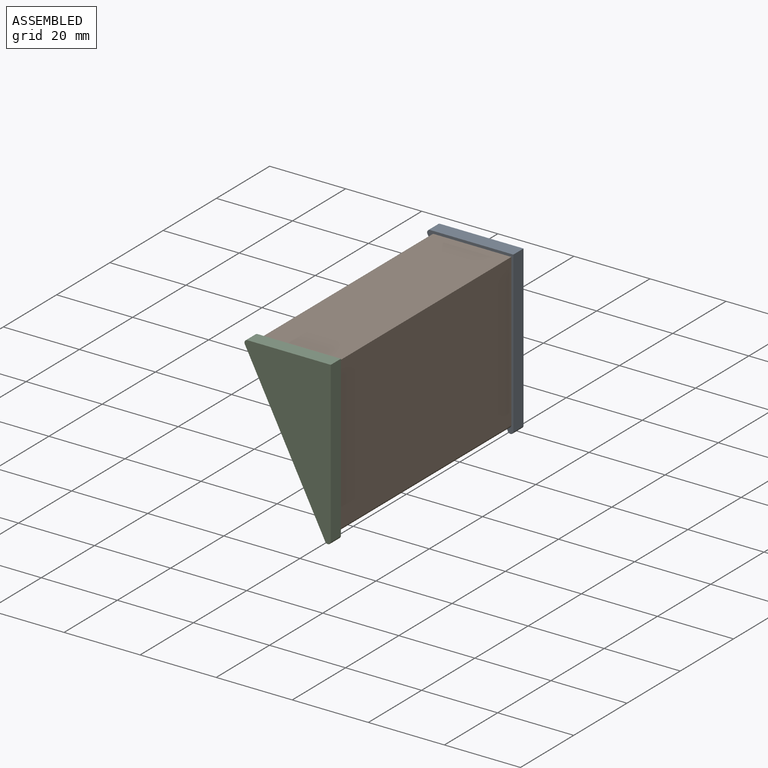
[diagram: assembled view]
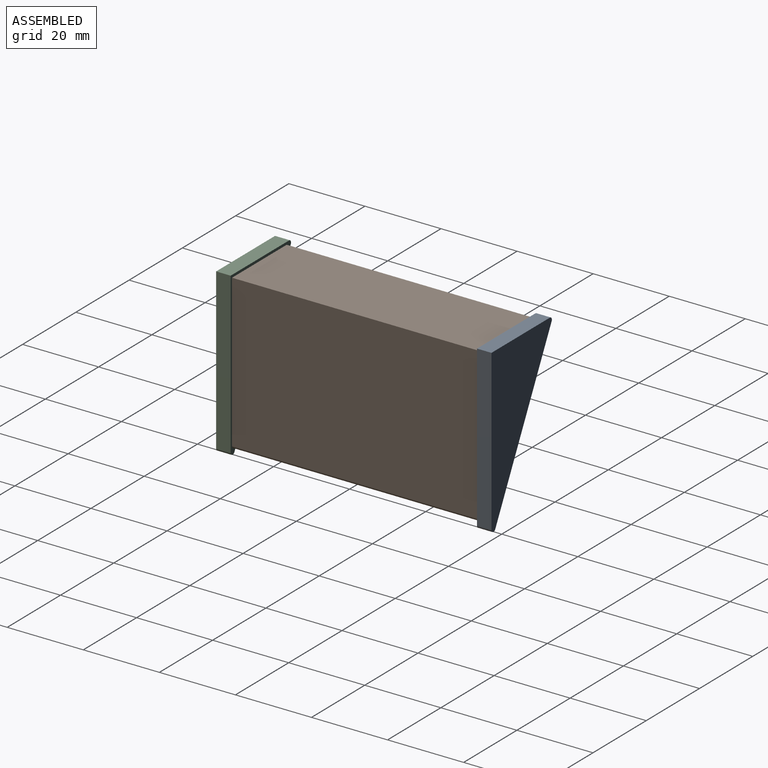
[diagram: assembled view, second angle]
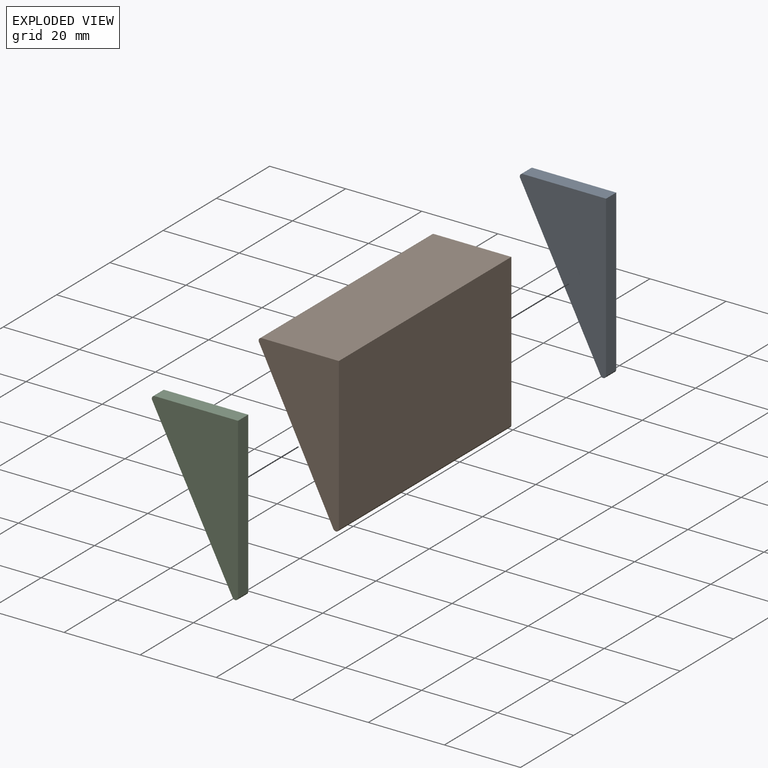
[diagram: exploded view]
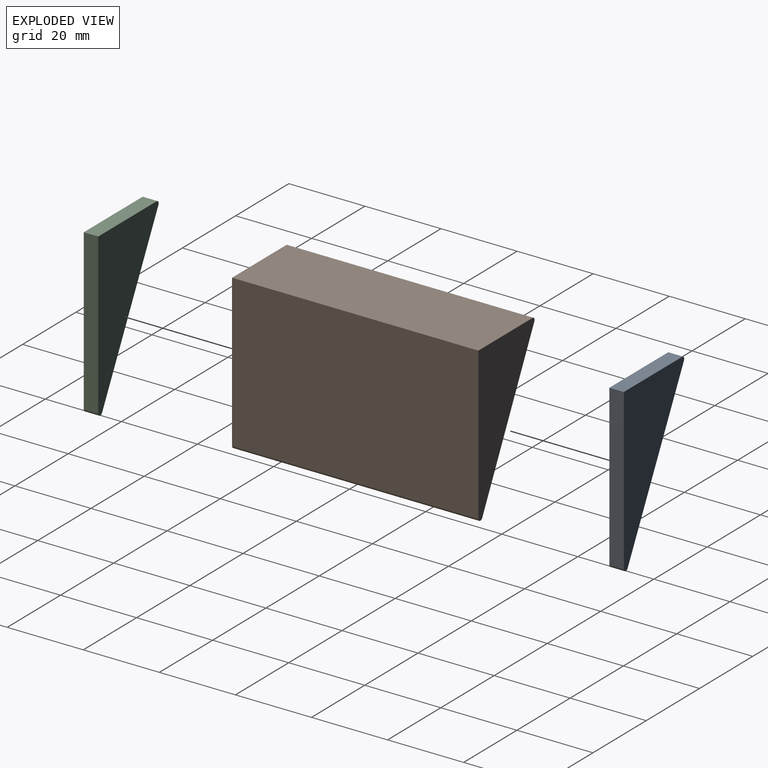
[diagram: exploded view, second angle]
ASSEMBLY  parts=3 mates=2
PART A: 7 faces, bbox 22.7x3.8x42.8 mm
  f0: plane 21.92x3.81mm, normal (0,0,-1), area 83.5mm2, adj f1,f3,f4,f6
  f1: plane 42.05x3.81mm, normal (1,0,0), area 160.2mm2, adj f0,f3,f4,f5
  f2: plane 41.29x21.15mm, normal (-0.89,0,0.46), area 176.8mm2, adj f3,f4,f5,f6
  f3: plane 42.82x22.68mm, normal (0,-1,0), area 521.6mm2, adj f0,f1,f2,f5,f6
  f4: plane 42.82x22.68mm, normal (0,1,0), area 521.6mm2, adj f0,f1,f2,f5,f6
  f5: cylinder r=0.76mm len=3.81mm, axis (0,1,0), area 7.7mm2, adj f1,f2,f3,f4
  f6: cylinder r=0.76mm len=3.81mm, axis (0,1,0), area 5.9mm2, adj f0,f2,f3,f4
PART B: 7 faces, bbox 21.1x64.8x40.7 mm
  f0: plane 64.77x39.95mm, normal (1,0,0), area 2587.4mm2, adj f1,f3,f4,f5
  f1: plane 64.77x20.32mm, normal (0,0,1), area 1316.2mm2, adj f0,f3,f4,f6
  f2: plane 64.77x39.19mm, normal (-0.89,0,-0.45), area 2836.6mm2, adj f3,f4,f5,f6
  f3: plane 40.71x21.08mm, normal (0,-1,0), area 463.3mm2, adj f0,f1,f2,f5,f6
  f4: plane 40.71x21.08mm, normal (0,1,0), area 463.3mm2, adj f0,f1,f2,f5,f6
  f5: cylinder r=0.76mm len=64.77mm, axis (0,1,0), area 132.2mm2, adj f0,f2,f3,f4
  f6: cylinder r=0.76mm len=64.77mm, axis (0,1,0), area 100.4mm2, adj f1,f2,f3,f4
PART C: same geometry as A
PLACE A rot(axis=(1,0,0),180deg) t=(3.13,-24.31,6.46)mm
PLACE B t=(2.59,-24.31,5.77)mm
PLACE C rot(axis=(1,0,0),180deg) t=(3.13,-92.89,6.46)mm
MATE fastened A.f4 <-> B.f4  axis (0,-1,0) through (-4.6,-24.31,-8.54)mm
MATE fastened C.f3 <-> B.f3  axis (0,1,0) through (-4.6,-89.08,-8.54)mm
